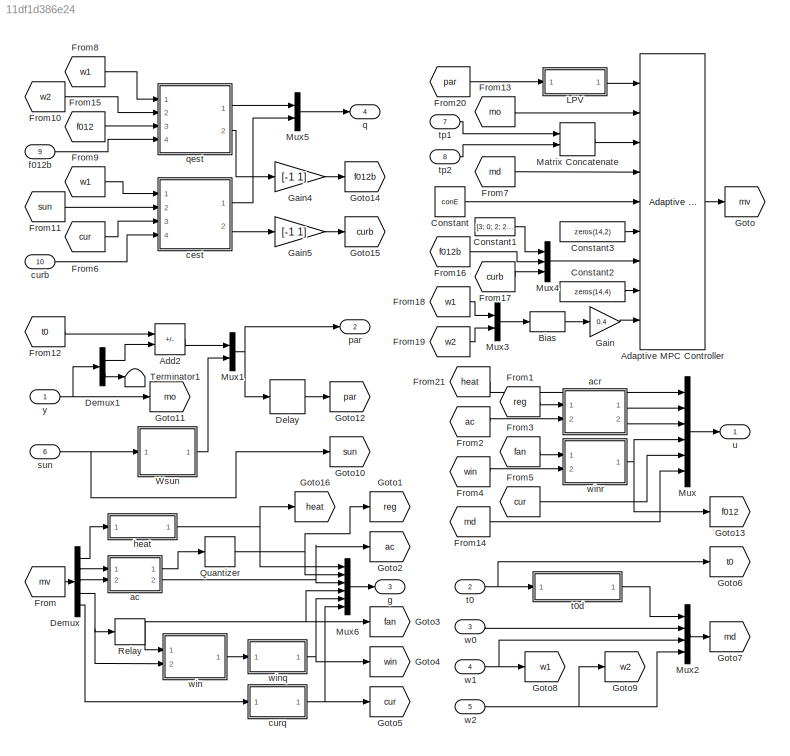
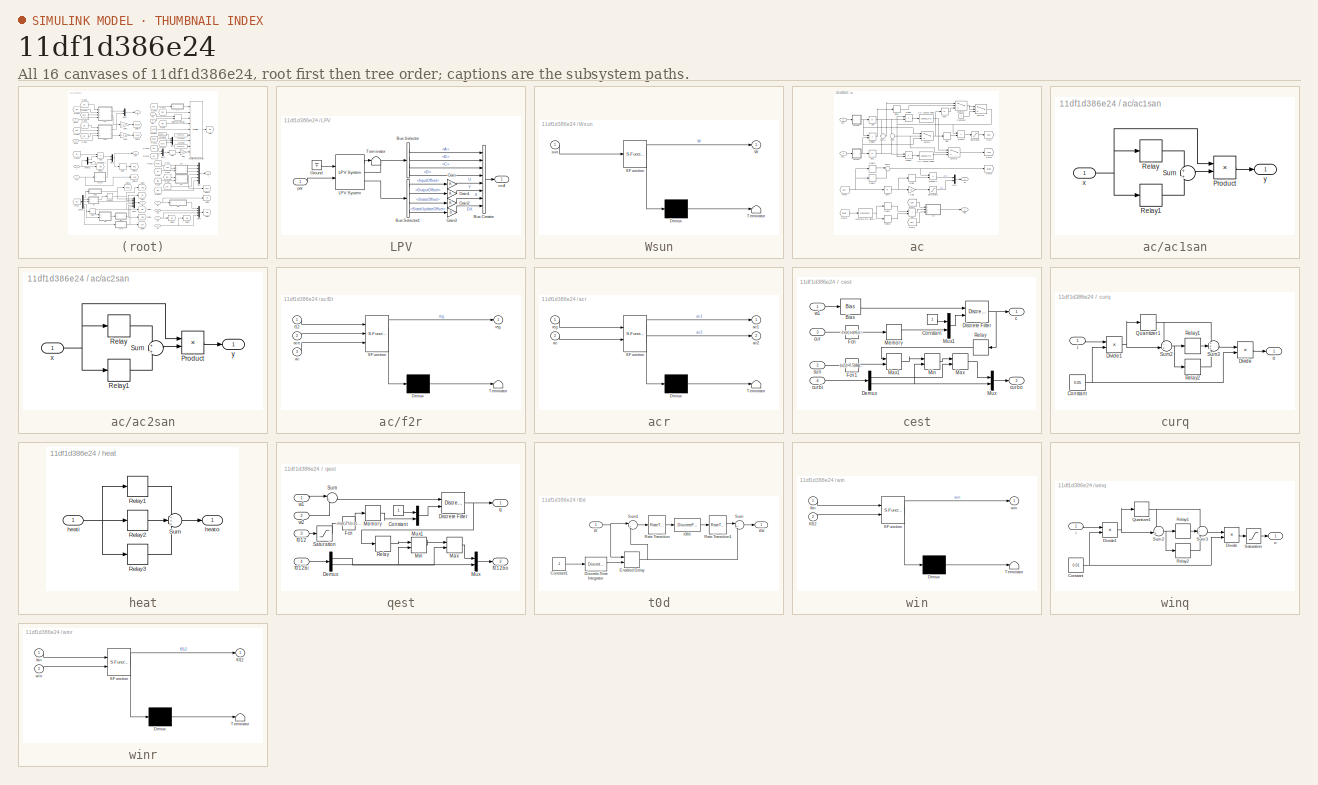
[diagram: thumbnail index - all 16 canvases of the model, root first then tree order]
MODEL slx_11df1d386e24
KIND model
CONFIG AbsTol = auto
CONFIG EnableMultiTasking = off
CONFIG FixedStep = 10
CONFIG MaxStep = auto
CONFIG MinStep = auto
CONFIG RelTol = 1e-3
CONFIG SampleTimeConstraint = Unconstrained
CONFIG Solver = FixedStepAuto
CONFIG SolverName = FixedStepAuto
CONFIG StartTime = 0.0
CONFIG StopTime = 86400
BLOCK [Reference] Adaptive MPC Controller  REF=mpclib/Adaptive MPC Controller  (lib defined in mdl_ae329e0e0455)
  Ports = [9, 1]
  SCDEnableBlockLinearizationSpecification = on
  SourceBlock = mpclib/Adaptive MPC Controller
  SourceProductBaseCode = MP
  SourceType = Adaptive MPC
BLOCK [Sum] Add2
  IconShape = rectangular
  Inputs = -+
  Ports = [2, 1]
BLOCK [Bias] Bias
  Bias = 0.1
  SaturateOnIntegerOverflow = off
BLOCK [Constant] Constant
  Value = conE
BLOCK [Constant] Constant1
  Value = [3; 0; 2; 2; 2; 2; 1.8; 1.8; 1.2; 1.2]
BLOCK [Constant] Constant2
  Value = zeros(14,4)
BLOCK [Constant] Constant3
  Value = zeros(14,2)
BLOCK [Delay] Delay
  DelayLength = 1
  InitialCondition = 0
  InputPortMap = u0
  Ports = [1, 1]
BLOCK [Demux] Demux
  Outputs = 5
  Ports = [1, 5]
BLOCK [Demux] Demux1
  Outputs = 2
  Ports = [1, 2]
BLOCK [From] From
  GotoTag = mv
BLOCK [From] From1
  GotoTag = reg
BLOCK [From] From10
  GotoTag = w2
BLOCK [From] From11
  GotoTag = sun
BLOCK [From] From12
  GotoTag = t0
BLOCK [From] From13
  GotoTag = mo
BLOCK [From] From14
  GotoTag = md
BLOCK [From] From15
  GotoTag = f012
BLOCK [From] From16
  GotoTag = f012b
BLOCK [From] From17
  GotoTag = curb
BLOCK [From] From18
  GotoTag = w1
BLOCK [From] From19
  GotoTag = w2
BLOCK [From] From2
  GotoTag = ac
BLOCK [From] From20
  GotoTag = par
BLOCK [From] From21
  GotoTag = heat
BLOCK [From] From3
  GotoTag = fan
BLOCK [From] From4
  GotoTag = win
BLOCK [From] From5
  GotoTag = cur
BLOCK [From] From6
  GotoTag = cur
BLOCK [From] From7
  GotoTag = md
BLOCK [From] From8
  GotoTag = w1
BLOCK [From] From9
  GotoTag = w1
BLOCK [Gain] Gain
  Gain = 0.4
BLOCK [Gain] Gain4
  Gain = [-1 1]
BLOCK [Gain] Gain5
  Gain = [-1 1]
BLOCK [Goto] Goto
  GotoTag = mv
BLOCK [Goto] Goto1
  GotoTag = reg
BLOCK [Goto] Goto10
  GotoTag = sun
BLOCK [Goto] Goto11
  GotoTag = mo
BLOCK [Goto] Goto12
  GotoTag = par
BLOCK [Goto] Goto13
  GotoTag = f012
BLOCK [Goto] Goto14
  GotoTag = f012b
BLOCK [Goto] Goto15
  GotoTag = curb
BLOCK [Goto] Goto16
  GotoTag = heat
BLOCK [Goto] Goto2
  GotoTag = ac
BLOCK [Goto] Goto3
  GotoTag = fan
BLOCK [Goto] Goto4
  GotoTag = win
BLOCK [Goto] Goto5
  GotoTag = cur
BLOCK [Goto] Goto6
  GotoTag = t0
BLOCK [Goto] Goto7
  GotoTag = md
BLOCK [Goto] Goto8
  GotoTag = w1
BLOCK [Goto] Goto9
  GotoTag = w2
BLOCK [SubSystem] LPV
  Ports = [1, 1]
  RequestExecContextInheritance = off
BLOCK [BusCreator] LPV/Bus Creator
  DisplayOption = bar
  InheritFromInputs = on
  Inputs = 8
  Ports = [8, 1]
BLOCK [BusSelector] LPV/Bus Selector
  OutputSignals = A,B,C,D
  Ports = [1, 4]
BLOCK [BusSelector] LPV/Bus Selector1
  OutputSignals = InputOffset,OutputOffset,StateOffset,StateUpdateOffset
  Ports = [1, 4]
BLOCK [Gain] LPV/Gain
BLOCK [Gain] LPV/Gain1
BLOCK [Gain] LPV/Gain2
BLOCK [Gain] LPV/Gain3
  Gain = 0
BLOCK [Ground] LPV/Ground
BLOCK [Reference] LPV/LPV System  REF=cstblocks/Linear Parameter Varying/LPV System
  Ports = [2, 3]
  SourceBlock = cstblocks/Linear Parameter Varying/LPV System
  SourceProductBaseCode = CT
  SourceType = LPV Block
BLOCK [Terminator] LPV/Terminator
BLOCK [Outport] LPV/mdl
BLOCK [Inport] LPV/par
BLOCK [Concatenate] Matrix Concatenate
  ConcatenateDimension = 2
  Mode = Multidimensional array
  Ports = [2, 1]
BLOCK [Mux] Mux
  DisplayOption = bar
  Inputs = 6
  Ports = [6, 1]
BLOCK [Mux] Mux1
  DisplayOption = bar
  Inputs = 2
  Ports = [2, 1]
BLOCK [Mux] Mux2
  DisplayOption = bar
  Ports = [4, 1]
BLOCK [Mux] Mux3
  DisplayOption = bar
  Inputs = 2
  Ports = [2, 1]
BLOCK [Mux] Mux4
  DisplayOption = bar
  Inputs = 3
  Ports = [3, 1]
BLOCK [Mux] Mux5
  DisplayOption = bar
  Inputs = 2
  Ports = [2, 1]
BLOCK [Mux] Mux6
  DisplayOption = bar
  Inputs = 6
  Ports = [6, 1]
BLOCK [Quantizer] Quantizer
  QuantizationInterval = 0.02
BLOCK [Relay] Relay
  OffSwitchValue = 0.201
  OnSwitchValue = 0.499
BLOCK [Terminator] Terminator1
BLOCK [SubSystem] Wsun
  ErrorFcn = Stateflow.Translate.translate
  PermitHierarchicalResolution = ExplicitOnly
  Ports = [1, 1]
  RequestExecContextInheritance = off
  SFBlockType = MATLAB Function
  TreatAsAtomicUnit = on
BLOCK [Demux] Wsun/ Demux 
  Outputs = 1
  Ports = [1, 1]
BLOCK [S-Function] Wsun/ SFunction 
  EnableBusSupport = on
  FunctionName = sf_sfun
  PortCounts = [1 2]
  Ports = [1, 2]
  SFcnIsStateOwnerBlock = off
  SFunctionDeploymentMode = off
  Tag = Stateflow S-Function 3
BLOCK [Terminator] Wsun/ Terminator 
BLOCK [Outport] Wsun/W
BLOCK [Inport] Wsun/sun
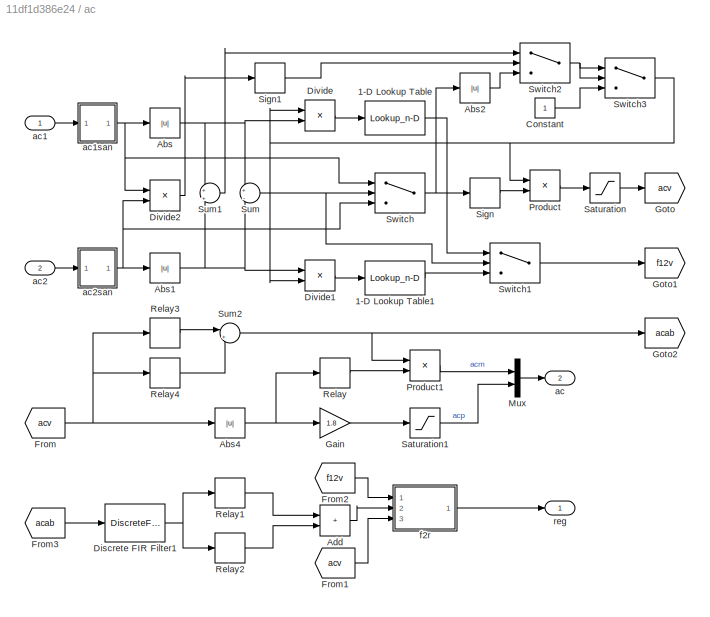
BLOCK [SubSystem] ac
  Ports = [2, 2]
  RequestExecContextInheritance = off
BLOCK [Lookup_n-D] ac/1-D Lookup Table
  BreakpointsForDimension1 = [0.4 0.9]
  ExtrapMethod = Clip
  InternalRulePriority = Speed
  NumberOfTableDimensions = 1
  Ports = [1, 1]
  RndMeth = Simplest
  Table = [0 2]
BLOCK [Lookup_n-D] ac/1-D Lookup Table1
  BreakpointsForDimension1 = [0.1 0.6]
  ExtrapMethod = Clip
  InternalRulePriority = Speed
  NumberOfTableDimensions = 1
  Ports = [1, 1]
  RndMeth = Simplest
  Table = [2 0]
BLOCK [Abs] ac/Abs
  SaturateOnIntegerOverflow = off
BLOCK [Abs] ac/Abs1
  SaturateOnIntegerOverflow = off
BLOCK [Abs] ac/Abs2
  SaturateOnIntegerOverflow = off
BLOCK [Abs] ac/Abs4
  SaturateOnIntegerOverflow = off
BLOCK [Sum] ac/Add
  IconShape = rectangular
  Ports = [2, 1]
BLOCK [Constant] ac/Constant
BLOCK [DiscreteFir] ac/Discrete FIR Filter1
  Coefficients = [0 ones(1,17)./17]
  InitialStates = 1
  InputPortMap = u0
  OutputPortMap = o0
  Ports = [1, 1]
BLOCK [Product] ac/Divide
  Inputs = /*
  Ports = [2, 1]
BLOCK [Product] ac/Divide1
  Inputs = */
  Ports = [2, 1]
BLOCK [Product] ac/Divide2
  Inputs = **
  Ports = [2, 1]
BLOCK [From] ac/From
  GotoTag = acv
BLOCK [From] ac/From1
  GotoTag = acv
BLOCK [From] ac/From2
  GotoTag = f12v
BLOCK [From] ac/From3
  GotoTag = acab
BLOCK [Gain] ac/Gain
  Gain = 1.8
BLOCK [Goto] ac/Goto
  GotoTag = acv
BLOCK [Goto] ac/Goto1
  GotoTag = f12v
BLOCK [Goto] ac/Goto2
  GotoTag = acab
BLOCK [Mux] ac/Mux
  DisplayOption = bar
  Inputs = 2
  Ports = [2, 1]
BLOCK [Product] ac/Product
  Ports = [2, 1]
BLOCK [Product] ac/Product1
  Ports = [2, 1]
BLOCK [Relay] ac/Relay
  OffOutputValue = 1
  OffSwitchValue = 1.05
  OnOutputValue = 2
  OnSwitchValue = 1.3
BLOCK [Relay] ac/Relay1
  OffSwitchValue = 0.3
  OnSwitchValue = 0.6
BLOCK [Relay] ac/Relay2
  OffOutputValue = -1
  OffSwitchValue = -0.6
  OnOutputValue = 0
  OnSwitchValue = -0.3
BLOCK [Relay] ac/Relay3
  OffSwitchValue = 0.05
  OnSwitchValue = 0.5
BLOCK [Relay] ac/Relay4
  OffOutputValue = -1
  OffSwitchValue = -0.5
  OnOutputValue = 0
  OnSwitchValue = -0.05
BLOCK [Saturate] ac/Saturation
  LowerLimit = -2
  UpperLimit = 2
BLOCK [Saturate] ac/Saturation1
  LowerLimit = 0
  UpperLimit = 1
BLOCK [Signum] ac/Sign
BLOCK [Signum] ac/Sign1
BLOCK [Sum] ac/Sum
  Inputs = +|-
  Ports = [2, 1]
BLOCK [Sum] ac/Sum1
  Inputs = +|+
  Ports = [2, 1]
BLOCK [Sum] ac/Sum2
  Inputs = |++
  Ports = [2, 1]
BLOCK [Switch] ac/Switch
  Criteria = u2 > Threshold
  InputSameDT = off
  SaturateOnIntegerOverflow = off
BLOCK [Switch] ac/Switch1
  Criteria = u2 > Threshold
  InputSameDT = off
  SaturateOnIntegerOverflow = off
BLOCK [Switch] ac/Switch2
  InputSameDT = off
  SaturateOnIntegerOverflow = off
BLOCK [Switch] ac/Switch3
  Criteria = u2 ~= 0
  InputSameDT = off
  SaturateOnIntegerOverflow = off
BLOCK [Outport] ac/ac
  Port = 2
BLOCK [Inport] ac/ac1
BLOCK [SubSystem] ac/ac1san
  Ports = [1, 1]
  RequestExecContextInheritance = off
BLOCK [Product] ac/ac1san/Product
  Ports = [2, 1]
BLOCK [Relay] ac/ac1san/Relay
  OffSwitchValue = 0.1
  OnSwitchValue = 0.2
BLOCK [Relay] ac/ac1san/Relay1
  OffOutputValue = 1
  OffSwitchValue = -0.2
  OnOutputValue = 0
  OnSwitchValue = -0.1
BLOCK [Sum] ac/ac1san/Sum
  Inputs = +|+
  Ports = [2, 1]
BLOCK [Inport] ac/ac1san/x
BLOCK [Outport] ac/ac1san/y
BLOCK [Inport] ac/ac2
  Port = 2
BLOCK [SubSystem] ac/ac2san
  Ports = [1, 1]
  RequestExecContextInheritance = off
BLOCK [Product] ac/ac2san/Product
  Ports = [2, 1]
BLOCK [Relay] ac/ac2san/Relay
  OffSwitchValue = 0.1
  OnSwitchValue = 0.2
BLOCK [Relay] ac/ac2san/Relay1
  OffOutputValue = 1
  OffSwitchValue = -0.2
  OnOutputValue = 0
  OnSwitchValue = -0.1
BLOCK [Sum] ac/ac2san/Sum
  Inputs = +|+
  Ports = [2, 1]
BLOCK [Inport] ac/ac2san/x
BLOCK [Outport] ac/ac2san/y
BLOCK [SubSystem] ac/f2r
  ErrorFcn = Stateflow.Translate.translate
  PermitHierarchicalResolution = ExplicitOnly
  Ports = [3, 1]
  RequestExecContextInheritance = off
  SFBlockType = MATLAB Function
  TreatAsAtomicUnit = on
BLOCK [Demux] ac/f2r/ Demux 
  Outputs = 1
  Ports = [1, 1]
BLOCK [S-Function] ac/f2r/ SFunction 
  EnableBusSupport = on
  FunctionName = sf_sfun
  PortCounts = [3 2]
  Ports = [3, 2]
  SFcnIsStateOwnerBlock = off
  SFunctionDeploymentMode = off
  Tag = Stateflow S-Function 4
BLOCK [Terminator] ac/f2r/ Terminator 
BLOCK [Inport] ac/f2r/ac
  Port = 3
BLOCK [Inport] ac/f2r/ace
  Port = 2
BLOCK [Inport] ac/f2r/f12
BLOCK [Outport] ac/f2r/reg
BLOCK [Outport] ac/reg
BLOCK [SubSystem] acr
  ErrorFcn = Stateflow.Translate.translate
  PermitHierarchicalResolution = ExplicitOnly
  Ports = [2, 2]
  RequestExecContextInheritance = off
  SFBlockType = MATLAB Function
  TreatAsAtomicUnit = on
BLOCK [Demux] acr/ Demux 
  Outputs = 1
  Ports = [1, 1]
BLOCK [S-Function] acr/ SFunction 
  EnableBusSupport = on
  FunctionName = sf_sfun
  PortCounts = [2 3]
  Ports = [2, 3]
  SFcnIsStateOwnerBlock = off
  SFunctionDeploymentMode = off
  Tag = Stateflow S-Function 1
BLOCK [Terminator] acr/ Terminator 
BLOCK [Inport] acr/ac
  Port = 2
BLOCK [Outport] acr/ac1
BLOCK [Outport] acr/ac2
  Port = 2
BLOCK [Inport] acr/reg
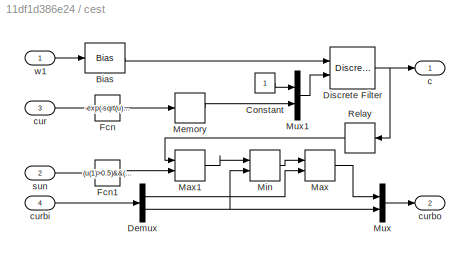
BLOCK [SubSystem] cest
  Ports = [4, 2]
  RequestExecContextInheritance = off
BLOCK [Bias] cest/Bias
  Bias = 5
  SaturateOnIntegerOverflow = off
BLOCK [Constant] cest/Constant
BLOCK [Demux] cest/Demux
  Outputs = 2
  Ports = [1, 2]
BLOCK [DiscreteFilter] cest/Discrete Filter
  Denominator = [1 -1]
  DenominatorSource = Input port
  InputPortMap = u0,p3
  Numerator = 9e-4
  Ports = [2, 1]
  a0EqualsOne = on
BLOCK [Fcn] cest/Fcn
  Expr = -exp(-sqrt(u)/10)+2e-3
BLOCK [Fcn] cest/Fcn1
  Expr = (u(1)>0.5)&&(u(2)>-0.5)
BLOCK [MinMax] cest/Max
  Function = max
  Inputs = 2
  Ports = [2, 1]
BLOCK [MinMax] cest/Max1
  Function = max
  Inputs = 2
  Ports = [2, 1]
BLOCK [Memory] cest/Memory
BLOCK [MinMax] cest/Min
  Inputs = 2
  Ports = [2, 1]
BLOCK [Mux] cest/Mux
  DisplayOption = bar
  Inputs = 2
  Ports = [2, 1]
BLOCK [Mux] cest/Mux1
  DisplayOption = bar
  Inputs = 2
  Ports = [2, 1]
BLOCK [Relay] cest/Relay
  NameLocation = top
  OffSwitchValue = 0.2
  OnSwitchValue = 2
BLOCK [Outport] cest/c
BLOCK [Inport] cest/cur
  Port = 3
BLOCK [Inport] cest/curbi
  Port = 4
BLOCK [Outport] cest/curbo
  Port = 2
BLOCK [Inport] cest/sun
  Port = 2
BLOCK [Inport] cest/w1
BLOCK [Inport] curb
  OutDataTypeStr = double
  Port = 10
  PortDimensions = 2
  SampleTime = 10
  SamplingMode = Sample based
  SignalType = real
BLOCK [SubSystem] curq
  Ports = [1, 1]
  RequestExecContextInheritance = off
BLOCK [Constant] curq/Constant
  Value = 0.05
BLOCK [Product] curq/Divide
  Inputs = **
  Ports = [2, 1]
BLOCK [Product] curq/Divide1
  Inputs = */
  Ports = [2, 1]
BLOCK [Quantizer] curq/Quantizer1
  QuantizationInterval = 2
BLOCK [Relay] curq/Relay1
  OffSwitchValue = 0.2
  OnSwitchValue = 0.8
BLOCK [Relay] curq/Relay2
  OffOutputValue = -1
  OffSwitchValue = -0.8
  OnOutputValue = 0
  OnSwitchValue = -0.2
BLOCK [Sum] curq/Sum2
  Inputs = -+|
  Ports = [2, 1]
BLOCK [Sum] curq/Sum3
  Inputs = +++
  Ports = [3, 1]
BLOCK [Inport] curq/i
BLOCK [Outport] curq/o
BLOCK [Inport] f012b
  OutDataTypeStr = double
  Port = 9
  PortDimensions = 2
  SampleTime = 10
  SamplingMode = Sample based
  SignalType = real
BLOCK [Outport] g
  NameLocation = right
  OutDataTypeStr = double
  Port = 3
  PortDimensions = [1 8]
  SampleTime = 10
  SamplingMode = Sample based
  SignalType = real
BLOCK [SubSystem] heat
  Ports = [1, 1]
  RequestExecContextInheritance = off
BLOCK [Relay] heat/Relay1
  OffSwitchValue = 0.45
  OnSwitchValue = 0.55
BLOCK [Relay] heat/Relay2
  OffSwitchValue = 1.4
  OnSwitchValue = 1.6
BLOCK [Relay] heat/Relay3
  OffSwitchValue = 2.35
  OnSwitchValue = 2.65
BLOCK [Sum] heat/Sum
  Inputs = +++
  Ports = [3, 1]
BLOCK [Inport] heat/heati
BLOCK [Outport] heat/heato
BLOCK [Outport] par
  OutDataTypeStr = double
  Port = 2
  PortDimensions = 2
  SampleTime = 10
  SamplingMode = Sample based
  SignalType = real
BLOCK [Outport] q
  OutDataTypeStr = double
  Port = 4
  PortDimensions = 2
  SampleTime = 10
  SamplingMode = Sample based
  SignalType = real
BLOCK [SubSystem] qest
  Ports = [4, 2]
  RequestExecContextInheritance = off
BLOCK [Constant] qest/Constant
BLOCK [Demux] qest/Demux
  Outputs = 2
  Ports = [1, 2]
BLOCK [DiscreteFilter] qest/Discrete Filter
  Denominator = [1 -1]
  DenominatorSource = Input port
  InputPortMap = u0,p3
  Numerator = 1e-3
  Ports = [2, 1]
  a0EqualsOne = on
BLOCK [Fcn] qest/Fcn
  Expr = -exp(-2*u)+1e-4
BLOCK [MinMax] qest/Max
  Function = max
  Inputs = 2
  Ports = [2, 1]
BLOCK [Memory] qest/Memory
BLOCK [MinMax] qest/Min
  Inputs = 2
  Ports = [2, 1]
BLOCK [Mux] qest/Mux
  DisplayOption = bar
  Inputs = 2
  Ports = [2, 1]
BLOCK [Mux] qest/Mux1
  DisplayOption = bar
  Inputs = 2
  Ports = [2, 1]
BLOCK [Relay] qest/Relay
  OffSwitchValue = 0.5
  OnSwitchValue = 2
BLOCK [Saturate] qest/Saturation
  LowerLimit = 0
BLOCK [Sum] qest/Sum
  Inputs = |++
  Ports = [2, 1]
BLOCK [Inport] qest/f012
  Port = 3
BLOCK [Inport] qest/f012bi
  Port = 4
BLOCK [Outport] qest/f012bo
  Port = 2
BLOCK [Outport] qest/q
BLOCK [Inport] qest/w1
BLOCK [Inport] qest/w2
  Port = 2
BLOCK [Inport] sun
  OutDataTypeStr = double
  Port = 6
  PortDimensions = 3
  SampleTime = 10
  SamplingMode = Sample based
  SignalType = real
BLOCK [Inport] t0
  OutDataTypeStr = double
  Port = 2
  PortDimensions = 1
  SampleTime = 10
  SamplingMode = Sample based
  SignalType = real
BLOCK [SubSystem] t0d
  Ports = [1, 1]
  RequestExecContextInheritance = off
BLOCK [Constant] t0d/Constant1
  Value = -1
BLOCK [DiscreteIntegrator] t0d/Discrete-Time Integrator
  ICPrevOutput = DiscIntNeverNeededParam
  ICPrevScaledInput = DiscIntNeverNeededParam
  InitialCondition = 1
  InitialConditionSetting = Auto
  LimitOutput = on
  LowerSaturationLimit = 0
  Ports = [1, 1]
  SampleTime = 10
  UpperSaturationLimit = 1
  gainval = 1
BLOCK [Delay] t0d/Enabled Delay
  DelayLength = 0
  InputPortMap = u0,e6
  Ports = [2, 1]
  ShowEnablePort = on
BLOCK [RateTransition] t0d/Rate Transition
  OutPortSampleTime = 10*60
  OutPortSampleTimeMultiple = 60
BLOCK [RateTransition] t0d/Rate Transition1
  OutPortSampleTime = 10
  OutPortSampleTimeMultiple = 10
BLOCK [Sum] t0d/Sum
  Inputs = |++
  Ports = [2, 1]
BLOCK [Sum] t0d/Sum1
  Inputs = |+-
  Ports = [2, 1]
BLOCK [Inport] t0d/t0
BLOCK [Outport] t0d/t0d
BLOCK [DiscreteFir] t0d/t0filt
  Coefficients = t0filt
  InputPortMap = u0
  OutputPortMap = o0
  Ports = [1, 1]
BLOCK [Inport] tp1
  OutDataTypeStr = double
  Port = 7
  PortDimensions = 25
  SampleTime = 10
  SamplingMode = Sample based
  SignalType = real
BLOCK [Inport] tp2
  OutDataTypeStr = double
  Port = 8
  PortDimensions = 25
  SampleTime = 10
  SamplingMode = Sample based
  SignalType = real
BLOCK [Outport] u
  OutDataTypeStr = double
  PortDimensions = 9
  SampleTime = 10
  SamplingMode = Sample based
  SignalType = real
BLOCK [Inport] w0
  OutDataTypeStr = double
  Port = 3
  PortDimensions = 1
  SampleTime = 10
  SamplingMode = Sample based
  SignalType = real
BLOCK [Inport] w1
  OutDataTypeStr = double
  Port = 4
  PortDimensions = 1
  SampleTime = 10
  SamplingMode = Sample based
  SignalType = real
BLOCK [Inport] w2
  OutDataTypeStr = double
  Port = 5
  PortDimensions = 1
  SampleTime = 10
  SamplingMode = Sample based
  SignalType = real
BLOCK [SubSystem] win
  ErrorFcn = Stateflow.Translate.translate
  PermitHierarchicalResolution = ExplicitOnly
  Ports = [2, 1]
  RequestExecContextInheritance = off
  SFBlockType = MATLAB Function
  TreatAsAtomicUnit = on
BLOCK [Demux] win/ Demux 
  Outputs = 1
  Ports = [1, 1]
BLOCK [S-Function] win/ SFunction 
  EnableBusSupport = on
  FunctionName = sf_sfun
  PortCounts = [2 2]
  Ports = [2, 2]
  SFcnIsStateOwnerBlock = off
  SFunctionDeploymentMode = off
  Tag = Stateflow S-Function 2
BLOCK [Terminator] win/ Terminator 
BLOCK [Inport] win/f012
  Port = 2
BLOCK [Inport] win/fan
BLOCK [Outport] win/win
BLOCK [SubSystem] winq
  Ports = [1, 1]
  RequestExecContextInheritance = off
BLOCK [Constant] winq/Constant
  Value = 0.01
BLOCK [Product] winq/Divide
  Inputs = **
  Ports = [2, 1]
BLOCK [Product] winq/Divide1
  Inputs = */
  Ports = [2, 1]
BLOCK [Quantizer] winq/Quantizer1
  QuantizationInterval = 2
BLOCK [Relay] winq/Relay1
  OffSwitchValue = 0.2
  OnSwitchValue = 0.8
BLOCK [Relay] winq/Relay2
  OffOutputValue = -1
  OffSwitchValue = -0.8
  OnOutputValue = 0
  OnSwitchValue = -0.2
BLOCK [Saturate] winq/Saturation
  LowerLimit = 0
  UpperLimit = 1
BLOCK [Sum] winq/Sum2
  Inputs = -+|
  Ports = [2, 1]
BLOCK [Sum] winq/Sum3
  Inputs = +++
  Ports = [3, 1]
BLOCK [Inport] winq/i
BLOCK [Outport] winq/o
BLOCK [SubSystem] winr
  ErrorFcn = Stateflow.Translate.translate
  PermitHierarchicalResolution = ExplicitOnly
  Ports = [2, 1]
  RequestExecContextInheritance = off
  SFBlockType = MATLAB Function
  TreatAsAtomicUnit = on
BLOCK [Demux] winr/ Demux 
  Outputs = 1
  Ports = [1, 1]
BLOCK [S-Function] winr/ SFunction 
  EnableBusSupport = on
  FunctionName = sf_sfun
  PortCounts = [2 2]
  Ports = [2, 2]
  SFcnIsStateOwnerBlock = off
  SFunctionDeploymentMode = off
  Tag = Stateflow S-Function 5
BLOCK [Terminator] winr/ Terminator 
BLOCK [Outport] winr/f012
BLOCK [Inport] winr/fan
BLOCK [Inport] winr/win
  Port = 2
BLOCK [Inport] y
  OutDataTypeStr = double
  PortDimensions = 2
  SampleTime = 10
  SamplingMode = Sample based
  SignalType = real
LINE Adaptive MPC Controller:1 -> Goto:1
LINE Add2:1 -> Mux1:1
LINE Bias:1 -> Gain:1
LINE Constant1:1 -> Mux4:1
LINE Constant2:1 -> Adaptive MPC Controller:8
LINE Constant3:1 -> Adaptive MPC Controller:6
LINE Constant:1 -> Adaptive MPC Controller:5
LINE Delay:1 -> Goto12:1
LINE Demux1:1 -> Add2:2
LINE Demux1:2 -> Terminator1:1
LINE Demux:1 -> heat:1
LINE Demux:2 -> ac:1
LINE Demux:3 -> ac:2
NET Demux:4 -> Relay:1, win:2
LINE Demux:5 -> curq:1
LINE From10:1 -> qest:2
LINE From11:1 -> cest:2
LINE From12:1 -> Add2:1
LINE From13:1 -> Adaptive MPC Controller:2
LINE From14:1 -> Mux:6
LINE From15:1 -> qest:3
LINE From16:1 -> Mux4:2
LINE From17:1 -> Mux4:3
LINE From18:1 -> Mux3:1
LINE From19:1 -> Mux3:2
LINE From1:1 -> acr:1
LINE From20:1 -> LPV:1
LINE From21:1 -> Mux:1
LINE From2:1 -> acr:2
LINE From3:1 -> winr:1
LINE From4:1 -> winr:2
LINE From5:1 -> Mux:5
LINE From6:1 -> cest:3
LINE From7:1 -> Adaptive MPC Controller:4
LINE From8:1 -> qest:1
LINE From9:1 -> cest:1
LINE From:1 -> Demux:1
LINE Gain4:1 -> Goto14:1
LINE Gain5:1 -> Goto15:1
LINE Gain:1 -> Adaptive MPC Controller:9
LINE LPV/Bus Creator:1 -> LPV/mdl:1
LINE LPV/Bus Selector1:1 -> LPV/Gain:1
LINE LPV/Bus Selector1:2 -> LPV/Gain1:1
LINE LPV/Bus Selector1:3 -> LPV/Gain2:1
LINE LPV/Bus Selector1:4 -> LPV/Gain3:1
LINE LPV/Bus Selector:1 -> LPV/Bus Creator:1
LINE LPV/Bus Selector:2 -> LPV/Bus Creator:2
LINE LPV/Bus Selector:3 -> LPV/Bus Creator:3
LINE LPV/Bus Selector:4 -> LPV/Bus Creator:4
LINE LPV/Gain1:1 -> LPV/Bus Creator:6
LINE LPV/Gain2:1 -> LPV/Bus Creator:7
LINE LPV/Gain3:1 -> LPV/Bus Creator:8
LINE LPV/Gain:1 -> LPV/Bus Creator:5
LINE LPV/Ground:1 -> LPV/LPV System:1
LINE LPV/LPV System:1 -> LPV/Terminator:1
LINE LPV/LPV System:2 -> LPV/Bus Selector:1
LINE LPV/LPV System:3 -> LPV/Bus Selector1:1
LINE LPV/par:1 -> LPV/LPV System:2
LINE LPV:1 -> Adaptive MPC Controller:1
LINE Matrix Concatenate:1 -> Adaptive MPC Controller:3
NET Mux1:1 -> Delay:1, par:1
LINE Mux2:1 -> Goto7:1
LINE Mux3:1 -> Bias:1
LINE Mux4:1 -> Adaptive MPC Controller:7
LINE Mux5:1 -> q:1
LINE Mux6:1 -> g:1
LINE Mux:1 -> u:1
NET Quantizer:1 -> Goto1:1, Mux6:2
NET Relay:1 -> Goto3:1, Mux6:4, win:1
LINE Wsun:1 -> Mux1:2
LINE ac/1-D Lookup Table1:1 -> ac/Switch1:3
LINE ac/1-D Lookup Table:1 -> ac/Switch1:1
NET ac/Abs1:1 -> ac/Divide1:1, ac/Sum1:2, ac/Sum:2
LINE ac/Abs2:1 -> ac/Switch2:3
NET ac/Abs4:1 -> ac/Gain:1, ac/Relay:1
NET ac/Abs:1 -> ac/Divide:2, ac/Sum1:1, ac/Sum:1
LINE ac/Add:1 -> ac/f2r:2
LINE ac/Constant:1 -> ac/Switch3:3
NET ac/Discrete FIR Filter1:1 -> ac/Relay1:1, ac/Relay2:1
LINE ac/Divide1:1 -> ac/1-D Lookup Table1:1
LINE ac/Divide2:1 -> ac/Sign1:1
LINE ac/Divide:1 -> ac/1-D Lookup Table:1
LINE ac/From1:1 -> ac/f2r:3
LINE ac/From2:1 -> ac/f2r:1
LINE ac/From3:1 -> ac/Discrete FIR Filter1:1
NET ac/From:1 -> ac/Abs4:1, ac/Relay3:1, ac/Relay4:1
LINE ac/Gain:1 -> ac/Saturation1:1
LINE ac/Mux:1 -> ac/ac:1
LINE ac/Product1:1 -> ac/Mux:1
LINE ac/Product:1 -> ac/Saturation:1
LINE ac/Relay1:1 -> ac/Add:1
LINE ac/Relay2:1 -> ac/Add:2
LINE ac/Relay3:1 -> ac/Sum2:1
LINE ac/Relay4:1 -> ac/Sum2:2
LINE ac/Relay:1 -> ac/Product1:2
LINE ac/Saturation1:1 -> ac/Mux:2
LINE ac/Saturation:1 -> ac/Goto:1
LINE ac/Sign1:1 -> ac/Switch2:2
LINE ac/Sign:1 -> ac/Product:2
LINE ac/Sum1:1 -> ac/Switch2:1
NET ac/Sum2:1 -> ac/Goto2:1, ac/Product1:1
NET ac/Sum:1 -> ac/Switch1:2, ac/Switch:2
LINE ac/Switch1:1 -> ac/Goto1:1
NET ac/Switch2:1 -> ac/Switch3:1, ac/Switch3:2
NET ac/Switch3:1 -> ac/Divide1:2, ac/Divide:1, ac/Product:1
NET ac/Switch:1 -> ac/Abs2:1, ac/Sign:1
LINE ac/ac1:1 -> ac/ac1san:1
LINE ac/ac1san/Product:1 -> ac/ac1san/y:1
LINE ac/ac1san/Relay1:1 -> ac/ac1san/Sum:2
LINE ac/ac1san/Relay:1 -> ac/ac1san/Sum:1
LINE ac/ac1san/Sum:1 -> ac/ac1san/Product:2
NET ac/ac1san/x:1 -> ac/ac1san/Product:1, ac/ac1san/Relay1:1, ac/ac1san/Relay:1
NET ac/ac1san:1 -> ac/Abs:1, ac/Divide2:1, ac/Switch:1
LINE ac/ac2:1 -> ac/ac2san:1
LINE ac/ac2san/Product:1 -> ac/ac2san/y:1
LINE ac/ac2san/Relay1:1 -> ac/ac2san/Sum:2
LINE ac/ac2san/Relay:1 -> ac/ac2san/Sum:1
LINE ac/ac2san/Sum:1 -> ac/ac2san/Product:2
NET ac/ac2san/x:1 -> ac/ac2san/Product:1, ac/ac2san/Relay1:1, ac/ac2san/Relay:1
NET ac/ac2san:1 -> ac/Abs1:1, ac/Divide2:2, ac/Switch:3
LINE ac/f2r:1 -> ac/reg:1
LINE ac:1 -> Quantizer:1
NET ac:2 -> Goto2:1, Mux6:3
LINE acr:1 -> Mux:2
LINE acr:2 -> Mux:3
LINE cest/Bias:1 -> cest/Discrete Filter:1
LINE cest/Constant:1 -> cest/Mux1:1
LINE cest/Demux:1 -> cest/Max:2
NET cest/Demux:2 -> cest/Min:2, cest/Mux:2
NET cest/Discrete Filter:1 -> cest/Relay:1, cest/c:1
LINE cest/Fcn1:1 -> cest/Max1:2
LINE cest/Fcn:1 -> cest/Memory:1
LINE cest/Max1:1 -> cest/Min:1
LINE cest/Max:1 -> cest/Mux:1
LINE cest/Memory:1 -> cest/Mux1:2
LINE cest/Min:1 -> cest/Max:1
LINE cest/Mux1:1 -> cest/Discrete Filter:2
LINE cest/Mux:1 -> cest/curbo:1
LINE cest/Relay:1 -> cest/Max1:1
LINE cest/cur:1 -> cest/Fcn:1
LINE cest/curbi:1 -> cest/Demux:1
LINE cest/sun:1 -> cest/Fcn1:1
LINE cest/w1:1 -> cest/Bias:1
LINE cest:1 -> Mux5:2
LINE cest:2 -> Gain5:1
LINE curb:1 -> cest:4
NET curq/Constant:1 -> curq/Divide1:2, curq/Divide:2
NET curq/Divide1:1 -> curq/Quantizer1:1, curq/Sum2:2
LINE curq/Divide:1 -> curq/o:1
NET curq/Quantizer1:1 -> curq/Sum2:1, curq/Sum3:1
LINE curq/Relay1:1 -> curq/Sum3:2
LINE curq/Relay2:1 -> curq/Sum3:3
NET curq/Sum2:1 -> curq/Relay1:1, curq/Relay2:1
LINE curq/Sum3:1 -> curq/Divide:1
LINE curq/i:1 -> curq/Divide1:1
NET curq:1 -> Goto5:1, Mux6:6
LINE f012b:1 -> qest:4
LINE heat/Relay1:1 -> heat/Sum:1
LINE heat/Relay2:1 -> heat/Sum:2
LINE heat/Relay3:1 -> heat/Sum:3
LINE heat/Sum:1 -> heat/heato:1
NET heat/heati:1 -> heat/Relay1:1, heat/Relay2:1, heat/Relay3:1
NET heat:1 -> Goto16:1, Mux6:1
LINE qest/Constant:1 -> qest/Mux1:1
LINE qest/Demux:1 -> qest/Max:2
NET qest/Demux:2 -> qest/Min:2, qest/Mux:2
NET qest/Discrete Filter:1 -> qest/Relay:1, qest/q:1
LINE qest/Fcn:1 -> qest/Memory:1
LINE qest/Max:1 -> qest/Mux:1
LINE qest/Memory:1 -> qest/Mux1:2
LINE qest/Min:1 -> qest/Max:1
LINE qest/Mux1:1 -> qest/Discrete Filter:2
LINE qest/Mux:1 -> qest/f012bo:1
LINE qest/Relay:1 -> qest/Min:1
LINE qest/Saturation:1 -> qest/Fcn:1
LINE qest/Sum:1 -> qest/Discrete Filter:1
LINE qest/f012:1 -> qest/Saturation:1
LINE qest/f012bi:1 -> qest/Demux:1
LINE qest/w1:1 -> qest/Sum:1
LINE qest/w2:1 -> qest/Sum:2
LINE qest:1 -> Mux5:1
LINE qest:2 -> Gain4:1
NET sun:1 -> Goto10:1, Wsun:1
NET t0:1 -> Goto6:1, t0d:1
LINE t0d/Constant1:1 -> t0d/Discrete-Time Integrator:1
LINE t0d/Discrete-Time Integrator:1 -> t0d/Enabled Delay:2
NET t0d/Enabled Delay:1 -> t0d/Sum1:2, t0d/Sum:2
LINE t0d/Rate Transition1:1 -> t0d/Sum:1
LINE t0d/Rate Transition:1 -> t0d/t0filt:1
LINE t0d/Sum1:1 -> t0d/Rate Transition:1
LINE t0d/Sum:1 -> t0d/t0d:1
NET t0d/t0:1 -> t0d/Enabled Delay:1, t0d/Sum1:1
LINE t0d/t0filt:1 -> t0d/Rate Transition1:1
LINE t0d:1 -> Mux2:1
LINE tp1:1 -> Matrix Concatenate:1
LINE tp2:1 -> Matrix Concatenate:2
LINE w0:1 -> Mux2:2
NET w1:1 -> Goto8:1, Mux2:3
NET w2:1 -> Goto9:1, Mux2:4
LINE win:1 -> winq:1
NET winq/Constant:1 -> winq/Divide1:2, winq/Divide:2
NET winq/Divide1:1 -> winq/Quantizer1:1, winq/Sum2:2
LINE winq/Divide:1 -> winq/Saturation:1
NET winq/Quantizer1:1 -> winq/Sum2:1, winq/Sum3:1
LINE winq/Relay1:1 -> winq/Sum3:2
LINE winq/Relay2:1 -> winq/Sum3:3
LINE winq/Saturation:1 -> winq/o:1
NET winq/Sum2:1 -> winq/Relay1:1, winq/Relay2:1
LINE winq/Sum3:1 -> winq/Divide:1
LINE winq/i:1 -> winq/Divide1:1
NET winq:1 -> Goto4:1, Mux6:5
NET winr:1 -> Goto13:1, Mux:4
NET y:1 -> Demux1:1, Goto11:1
note: NET lines group one-source signal fan-out (src -> all destinations, sorted); 1:1 wires keep LINE
CHART acr states=1 transitions=1
  STATE_LABEL 'eML_blk_kernel()'
  STATE_LABEL 'SCRIPT:\nfunction [ac1, ac2] = acr(reg, ac)\n\nfx = max(reg(1), reg(2));\nf12 = (4/3).*reg(1) + (2/3).*(1-reg(2));\n\nklb = 0.4;\nkub = 0.9;\nac1 = fx.*ac(1)*ac(2).*(klb+(kub-klb).*f12./2);\nac2 = fx.*ac(1)*ac(2).*(1-(klb+(kub-klb).*f12./2));\n\nend\n'
CHART win states=1 transitions=1
  STATE_LABEL 'eML_blk_kernel()'
  STATE_LABEL 'SCRIPT:\nfunction win  = win(fan, f012)\n\nif fan == 0\n    win = f012 ./ 0.2;\nelse\n    win = f012;\nend\n\nend\n'
CHART Wsun states=1 transitions=1
  STATE_LABEL 'eML_blk_kernel()'
  STATE_LABEL 'SCRIPT:\nfunction W = Wsun(sun)\n\nton = sun(1);\ntoff = sun(2);\nta = ton - (toff+ton)*0.1;\ntb = toff - (toff+ton)*0.1;\nsr = 1.4;\nuvi = sun(3);\nW = 140.*uvi./(1+exp(-sr.*ta))./(1+exp(-sr.*tb));\n'
CHART ac/f2r states=1 transitions=1
  STATE_LABEL 'eML_blk_kernel()'
  STATE_LABEL 'SCRIPT:\nfunction reg  = f2r(f12, ace, ac)\n\nif ace * ac <= 0\n    reg = [0 0];\nelseif f12 < 4/3\n    reg = [3.*f12./4 1];\nelse\n    reg = [1 3-3.*f12./2];\nend\n\nend\n'
CHART winr states=1 transitions=1
  STATE_LABEL 'eML_blk_kernel()'
  STATE_LABEL 'SCRIPT:\nfunction f012  = winr(fan, win)\n\nif fan == 0\n    f012 = 0.2 .* win;\nelse\n    f012 = win;\nend\n\nend\n'
CHART  states=0 transitions=0
CHART  states=0 transitions=0
CHART  states=0 transitions=0
CHART  states=0 transitions=0
CHART  states=0 transitions=0
